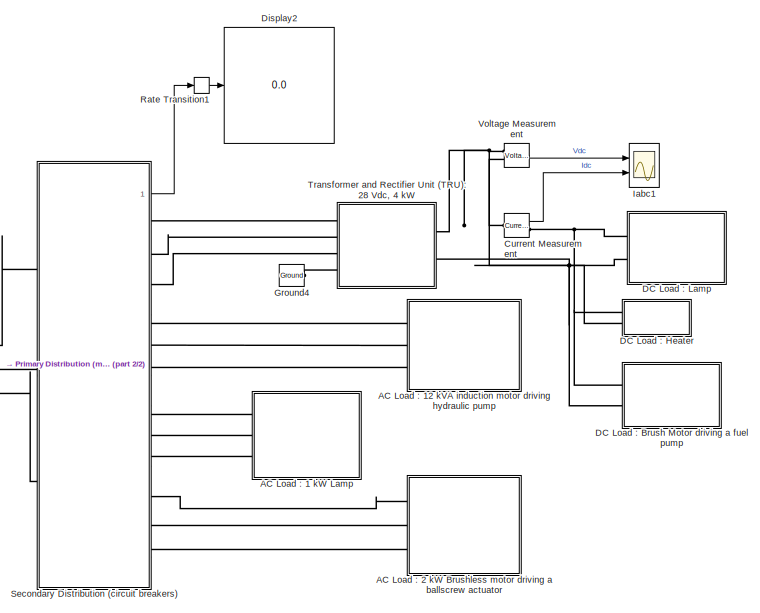
[diagram: root canvas - part 1/2, middle right region]
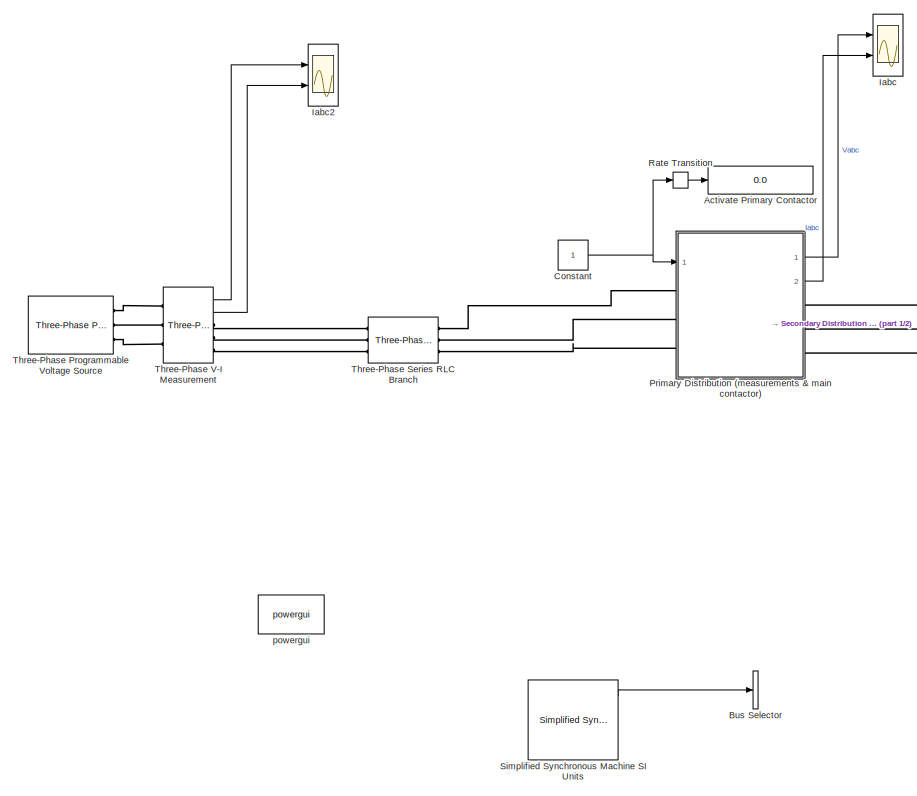
[diagram: root canvas - part 2/2, left side, full height]
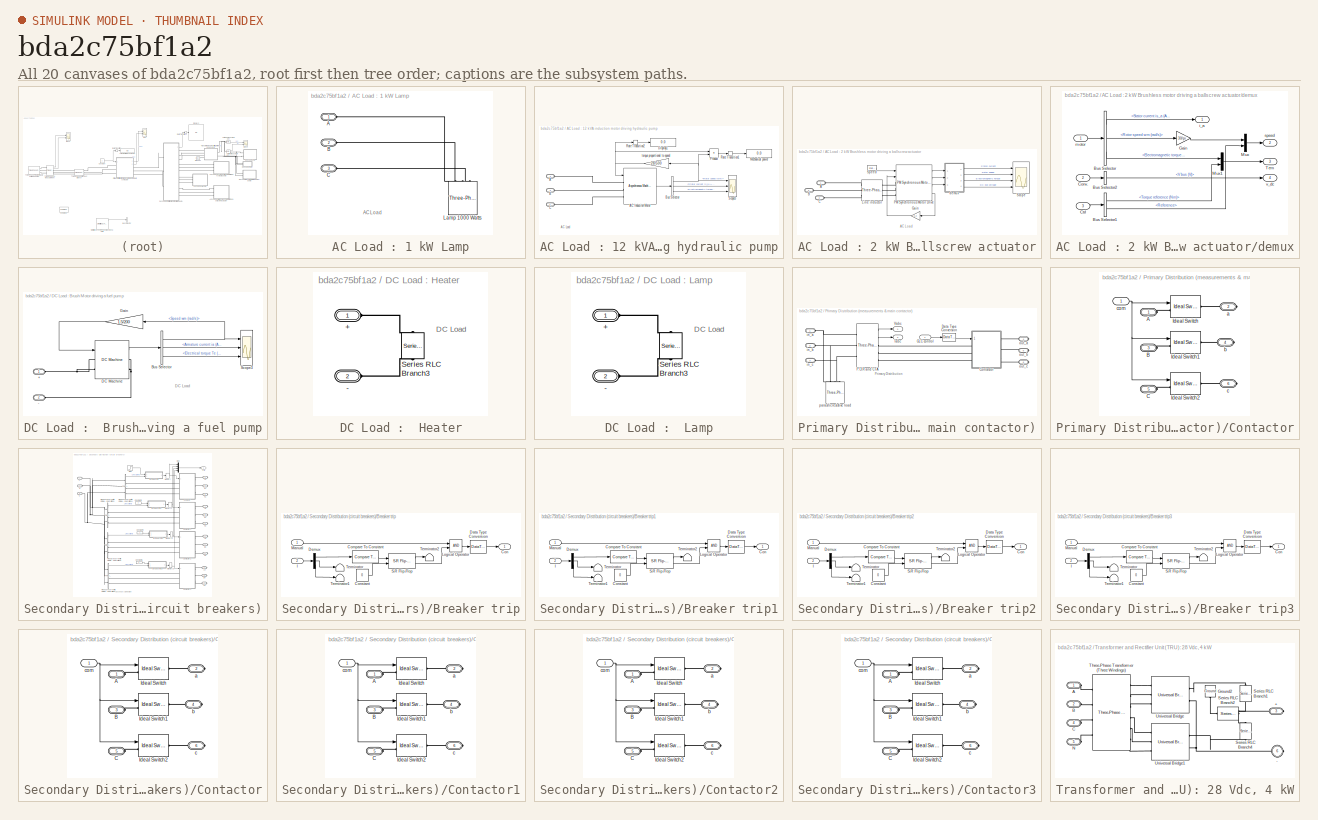
[diagram: thumbnail index - all 20 canvases of the model, root first then tree order]
MODEL slx_bda2c75bf1a2
KIND model
CONFIG AbsTol = auto
CONFIG FixedStep = auto
CONFIG MaxStep = auto
CONFIG MinStep = auto
CONFIG RelTol = 1e-3
CONFIG SampleTimeConstraint = Unconstrained
CONFIG Solver = VariableStepAuto
CONFIG SolverMode = Auto
CONFIG SolverName = VariableStepAuto
CONFIG StartTime = 0.0
CONFIG StopTime = 0.01
BLOCK [SubSystem] AC Load : 1 kW Lamp
  Ports = [0, 0, 0, 0, 0, 3]
  RequestExecContextInheritance = off
  Variant = off
BLOCK [PMIOPort] AC Load : 1 kW Lamp/A
  Port = 1
  Side = Left
BLOCK [PMIOPort] AC Load : 1 kW Lamp/B
  Port = 2
  Side = Left
BLOCK [PMIOPort] AC Load : 1 kW Lamp/C
  Port = 3
  Side = Left
BLOCK [Reference] AC Load : 1 kW Lamp/Lamp 1000 Watts  REF=powerlib/Elements/Three-Phase
Series RLC Load
  AttributesFormatString = \n
  Ports = [0, 0, 0, 0, 0, 3]
  SourceBlock = powerlib/Elements/Three-Phase\nSeries RLC Load
  SourceType = Three-Phase Series RLC Load
BLOCK [SubSystem] AC Load : 12 kVA induction motor driving hydraulic pump
  Ports = [0, 0, 0, 0, 0, 3]
  RequestExecContextInheritance = off
  Variant = off
BLOCK [PMIOPort] AC Load : 12 kVA induction motor driving hydraulic pump/A
  Port = 1
  Side = Left
BLOCK [Reference] AC Load : 12 kVA induction motor driving hydraulic pump/AC Induction Motor  REF=powerlib/Machines/Asynchronous Machine
SI Units
  Ports = [1, 1, 0, 0, 0, 3]
  SourceBlock = powerlib/Machines/Asynchronous Machine\nSI Units
  SourceType = Asynchronous Machine
BLOCK [PMIOPort] AC Load : 12 kVA induction motor driving hydraulic pump/B
  Port = 2
  Side = Left
BLOCK [BusSelector] AC Load : 12 kVA induction motor driving hydraulic pump/Bus Selector
  OutputSignals = Mechanical.Rotor speed (wm),Stator measurements.Stator current is_a (A),Mechanical.Electromagnetic torque Te (N*m)
  Ports = [1, 3]
BLOCK [PMIOPort] AC Load : 12 kVA induction motor driving hydraulic pump/C
  Port = 3
  Side = Left
BLOCK [Display] AC Load : 12 kVA induction motor driving hydraulic pump/Display1
  Decimation = 1
  Ports = [1]
  SampleTime = 1e-2
BLOCK [Display] AC Load : 12 kVA induction motor driving hydraulic pump/Mechanical power
  Decimation = 1
  Ports = [1]
  SampleTime = 1e-2
BLOCK [Product] AC Load : 12 kVA induction motor driving hydraulic pump/Product
  InputSameDT = off
  OutDataTypeStr = Inherit: Inherit via internal rule
  Ports = [2, 1]
  SaturateOnIntegerOverflow = off
BLOCK [RateTransition] AC Load : 12 kVA induction motor driving hydraulic pump/Rate Transition1
  OutPortSampleTime = Ts
  OutPortSampleTimeOpt = Inherit
BLOCK [RateTransition] AC Load : 12 kVA induction motor driving hydraulic pump/Rate Transition2
  OutPortSampleTime = Ts
  OutPortSampleTimeOpt = Inherit
BLOCK [Scope] AC Load : 12 kVA induction motor driving hydraulic pump/Scope3
  NumInputPorts = 3
  Ports = [3]
  ScopeSpecificationString = Simulink.scopes.TimeScopeBlockCfg('CurrentConfiguration', extmgr.ConfigurationSet(extmgr.Configuration('Core','General UI',true,'ShowLoadConfigSet',false,'ShowNewAction',false,'FigureColor',[0.156862745098039 0.156862745098039 0.156862745098039],'ShowSaveConfigSet',false,'ShowConfiguration',true,'ShowPlaybackToolbar',false),extmgr.Configuration('Core','Source UI',true,'ShowRecentSources',false,'Sh...<+3373ch>
BLOCK [Gain] AC Load : 12 kVA induction motor driving hydraulic pump/torque proportional to speed
  Gain = 28/500
  OutDataTypeStr = Inherit: Inherit via internal rule
  ParamDataTypeStr = Inherit: Inherit via internal rule
  SaturateOnIntegerOverflow = off
BLOCK [SubSystem] AC Load : 2 kW Brushless motor driving a ballscrew actuator
  Ports = [0, 0, 0, 0, 0, 3]
  RequestExecContextInheritance = off
  Variant = off
BLOCK [PMIOPort] AC Load : 2 kW Brushless motor driving a ballscrew actuator/A
  Port = 1
  Side = Left
BLOCK [PMIOPort] AC Load : 2 kW Brushless motor driving a ballscrew actuator/B
  Port = 2
  Side = Left
BLOCK [PMIOPort] AC Load : 2 kW Brushless motor driving a ballscrew actuator/C
  Port = 3
  Side = Left
BLOCK [Gain] AC Load : 2 kW Brushless motor driving a ballscrew actuator/Gain
  Gain = 0.2
  OutDataTypeStr = Inherit: Inherit via internal rule
  ParamDataTypeStr = Inherit: Inherit via internal rule
  SaturateOnIntegerOverflow = off
BLOCK [Reference] AC Load : 2 kW Brushless motor driving a ballscrew actuator/Line inductor  REF=powerlib/Elements/Three-Phase
Series RLC Branch
  AttributesFormatString = \n
  Ports = [0, 0, 0, 0, 0, 3, 3]
  SourceBlock = powerlib/Elements/Three-Phase\nSeries RLC Branch
  SourceType = Three-Phase Series RLC Branch
BLOCK [Reference] AC Load : 2 kW Brushless motor driving a ballscrew actuator/PM Synchronous Motor Drive  REF=electricdrivelib/AC drives/PM Synchronous Motor Drive
  Ports = [2, 4, 0, 0, 0, 3]
  SourceBlock = electricdrivelib/AC drives/PM Synchronous Motor Drive
  SourceType = PM Synchronous Motor Drive
  UserDataPersistent = on
BLOCK [Scope] AC Load : 2 kW Brushless motor driving a ballscrew actuator/Scope
  NumInputPorts = 4
  Ports = [4]
  ScopeSpecificationString = Simulink.scopes.TimeScopeBlockCfg('CurrentConfiguration', extmgr.ConfigurationSet(extmgr.Configuration('Core','General UI',true,'FigureColor',[0.156862745098039 0.156862745098039 0.156862745098039]),extmgr.Configuration('Core','Source UI',true),extmgr.Configuration('Sources','WiredSimulink',true,'DataLoggingSaveFormat','Array','DataLoggingDecimation','1'),extmgr.Configuration('Visuals','Time Domai...<+3716ch>
BLOCK [Reference] AC Load : 2 kW Brushless motor driving a ballscrew actuator/Speed  REF=powerlib_meascontrol/Pulse & Signal
Generators/Stair
Generator
  Ports = [0, 1]
  SourceBlock = powerlib_meascontrol/Pulse & Signal\nGenerators/Stair\nGenerator
  SourceType = Stair Generator
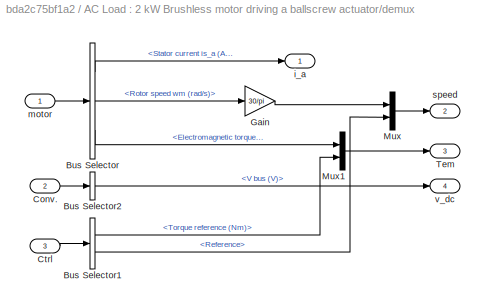
BLOCK [SubSystem] AC Load : 2 kW Brushless motor driving a ballscrew actuator/demux
  Ports = [3, 4]
  RequestExecContextInheritance = off
  Variant = off
BLOCK [BusSelector] AC Load : 2 kW Brushless motor driving a ballscrew actuator/demux/Bus Selector
  OutputSignals = Stator current is_a (A),Rotor speed wm (rad/s),Electromagnetic torque Te (N*m)
  Ports = [1, 3]
BLOCK [BusSelector] AC Load : 2 kW Brushless motor driving a ballscrew actuator/demux/Bus Selector1
  OutputSignals = Torque reference (Nm),Reference
  Ports = [1, 2]
BLOCK [BusSelector] AC Load : 2 kW Brushless motor driving a ballscrew actuator/demux/Bus Selector2
  OutputSignals = V bus (V)
  Ports = [1, 1]
BLOCK [Inport] AC Load : 2 kW Brushless motor driving a ballscrew actuator/demux/Conv.
  IconDisplay = Port number
  Port = 2
BLOCK [Inport] AC Load : 2 kW Brushless motor driving a ballscrew actuator/demux/Ctrl
  IconDisplay = Port number
  Port = 3
BLOCK [Gain] AC Load : 2 kW Brushless motor driving a ballscrew actuator/demux/Gain
  Gain = 30/pi
BLOCK [Mux] AC Load : 2 kW Brushless motor driving a ballscrew actuator/demux/Mux
  DisplayOption = bar
  Inputs = 2
  Ports = [2, 1]
BLOCK [Mux] AC Load : 2 kW Brushless motor driving a ballscrew actuator/demux/Mux1
  DisplayOption = bar
  Inputs = 2
  Ports = [2, 1]
BLOCK [Outport] AC Load : 2 kW Brushless motor driving a ballscrew actuator/demux/Tem
  IconDisplay = Port number
  Port = 3
BLOCK [Outport] AC Load : 2 kW Brushless motor driving a ballscrew actuator/demux/i_a
  IconDisplay = Port number
BLOCK [Inport] AC Load : 2 kW Brushless motor driving a ballscrew actuator/demux/motor
  IconDisplay = Port number
BLOCK [Outport] AC Load : 2 kW Brushless motor driving a ballscrew actuator/demux/speed
  IconDisplay = Port number
  Port = 2
BLOCK [Outport] AC Load : 2 kW Brushless motor driving a ballscrew actuator/demux/v_dc
  IconDisplay = Port number
  Port = 4
BLOCK [Display] Activate Primary Contactor
  Decimation = 1
  Ports = [1]
  SampleTime = 1e-2
BLOCK [BusSelector] Bus Selector
  OutputSignals = signal1,signal2
  Ports = [1, 2]
BLOCK [Constant] Constant
BLOCK [Reference] Current Measurement  REF=powerlib/Measurements/Current Measurement
  Ports = [0, 1, 0, 0, 0, 1, 1]
  SourceBlock = powerlib/Measurements/Current Measurement
  SourceType = Current Measurement
BLOCK [SubSystem] DC Load :  Brush Motor driving a fuel pump
  Ports = [0, 0, 0, 0, 0, 2]
  RequestExecContextInheritance = off
  Variant = off
BLOCK [PMIOPort] DC Load :  Brush Motor driving a fuel pump/+
  Port = 1
  Side = Left
BLOCK [PMIOPort] DC Load :  Brush Motor driving a fuel pump/-
  Port = 2
  Side = Left
BLOCK [BusSelector] DC Load :  Brush Motor driving a fuel pump/Bus Selector
  OutputSignals = Speed wm (rad/s),Armature current ia (A),Electrical torque Te (n m)
  Ports = [1, 3]
BLOCK [Reference] DC Load :  Brush Motor driving a fuel pump/DC Machine  REF=powerlib/Machines/DC Machine
  Ports = [1, 1, 0, 0, 0, 2, 2]
  SourceBlock = powerlib/Machines/DC Machine
  SourceType = DC machine
BLOCK [Gain] DC Load :  Brush Motor driving a fuel pump/Gain
  Gain = 1.5/200
  OutDataTypeStr = Inherit: Inherit via internal rule
  ParamDataTypeStr = Inherit: Inherit via internal rule
  SaturateOnIntegerOverflow = off
BLOCK [Scope] DC Load :  Brush Motor driving a fuel pump/Scope3
  NumInputPorts = 3
  Ports = [3]
  ScopeSpecificationString = Simulink.scopes.TimeScopeBlockCfg('CurrentConfiguration', extmgr.ConfigurationSet(extmgr.Configuration('Core','General UI',true,'ShowLoadConfigSet',false,'ShowNewAction',false,'FigureColor',[0.156862745098039 0.156862745098039 0.156862745098039],'ShowSaveConfigSet',false,'ShowConfiguration',true,'ShowPlaybackToolbar',false),extmgr.Configuration('Core','Source UI',true,'ShowRecentSources',false,'Sh...<+3373ch>
BLOCK [SubSystem] DC Load :  Heater
  Ports = [0, 0, 0, 0, 0, 2]
  RequestExecContextInheritance = off
  Variant = off
BLOCK [PMIOPort] DC Load :  Heater/+
  Port = 1
  Side = Left
BLOCK [PMIOPort] DC Load :  Heater/-
  Port = 2
  Side = Left
BLOCK [Reference] DC Load :  Heater/Series RLC Branch3  REF=powerlib/Elements/Series RLC Branch
  Ports = [0, 0, 0, 0, 0, 1, 1]
  SourceBlock = powerlib/Elements/Series RLC Branch
  SourceType = Series RLC Branch
BLOCK [SubSystem] DC Load :  Lamp
  Ports = [0, 0, 0, 0, 0, 2]
  RequestExecContextInheritance = off
  Variant = off
BLOCK [PMIOPort] DC Load :  Lamp/+
  Port = 1
  Side = Left
BLOCK [PMIOPort] DC Load :  Lamp/-
  Port = 2
  Side = Left
BLOCK [Reference] DC Load :  Lamp/Series RLC Branch3  REF=powerlib/Elements/Series RLC Branch
  Ports = [0, 0, 0, 0, 0, 1, 1]
  SourceBlock = powerlib/Elements/Series RLC Branch
  SourceType = Series RLC Branch
BLOCK [Display] Display2
  Decimation = 1
  Ports = [1]
  SampleTime = 1e-2
BLOCK [Reference] Ground4  REF=powerlib/Elements/Ground
  Ports = [0, 0, 0, 0, 0, 1]
  SourceBlock = powerlib/Elements/Ground
  SourceType = Ground
BLOCK [Scope] Iabc
  NumInputPorts = 2
  Ports = [2]
  ScopeSpecificationString = Simulink.scopes.TimeScopeBlockCfg('CurrentConfiguration', extmgr.ConfigurationSet(extmgr.Configuration('Core','General UI',true,'FigureColor',[0.156862745098039 0.156862745098039 0.156862745098039]),extmgr.Configuration('Core','Source UI',true),extmgr.Configuration('Sources','WiredSimulink',true,'DataLoggingSaveFormat','Array','DataLoggingDecimation','1','DataLoggingVariableName','ScopeData1'),ext...<+2982ch>
BLOCK [Scope] Iabc1
  NumInputPorts = 2
  Ports = [2]
  ScopeSpecificationString = C++SS(StrPVP('SaveName','ScopeData2'))
BLOCK [Scope] Iabc2
  NumInputPorts = 2
  Ports = [2]
  ScopeSpecificationString = Simulink.scopes.TimeScopeBlockCfg('CurrentConfiguration', extmgr.ConfigurationSet(extmgr.Configuration('Core','General UI',true,'FigureColor',[0.156862745098039 0.156862745098039 0.156862745098039]),extmgr.Configuration('Core','Source UI',true),extmgr.Configuration('Sources','WiredSimulink',true,'DataLoggingSaveFormat','Array','DataLoggingDecimation','1','DataLoggingVariableName','ScopeData3'),ext...<+3188ch>
BLOCK [SubSystem] Primary Distribution (measurements & main contactor)
  Ports = [1, 2, 0, 0, 0, 3, 3]
  RequestExecContextInheritance = off
  Variant = off
BLOCK [SubSystem] Primary Distribution (measurements & main contactor)/Contactor
  Ports = [1, 0, 0, 0, 0, 3, 3]
  RequestExecContextInheritance = off
  Variant = off
BLOCK [PMIOPort] Primary Distribution (measurements & main contactor)/Contactor/A
  Port = 1
  Side = Left
BLOCK [PMIOPort] Primary Distribution (measurements & main contactor)/Contactor/B
  Port = 3
  Side = Left
BLOCK [PMIOPort] Primary Distribution (measurements & main contactor)/Contactor/C
  Port = 5
  Side = Left
BLOCK [Reference] Primary Distribution (measurements & main contactor)/Contactor/Ideal Switch  REF=powerlib/Power
Electronics/Ideal Switch
  Ports = [1, 0, 0, 0, 0, 1, 1]
  SourceBlock = powerlib/Power\nElectronics/Ideal Switch
  SourceType = Ideal Switch
BLOCK [Reference] Primary Distribution (measurements & main contactor)/Contactor/Ideal Switch1  REF=powerlib/Power
Electronics/Ideal Switch
  Ports = [1, 0, 0, 0, 0, 1, 1]
  SourceBlock = powerlib/Power\nElectronics/Ideal Switch
  SourceType = Ideal Switch
BLOCK [Reference] Primary Distribution (measurements & main contactor)/Contactor/Ideal Switch2  REF=powerlib/Power
Electronics/Ideal Switch
  Ports = [1, 0, 0, 0, 0, 1, 1]
  SourceBlock = powerlib/Power\nElectronics/Ideal Switch
  SourceType = Ideal Switch
BLOCK [PMIOPort] Primary Distribution (measurements & main contactor)/Contactor/a
  Port = 2
  Side = Right
BLOCK [PMIOPort] Primary Distribution (measurements & main contactor)/Contactor/b
  Port = 4
  Side = Right
BLOCK [PMIOPort] Primary Distribution (measurements & main contactor)/Contactor/c
  Port = 6
  Side = Right
BLOCK [Inport] Primary Distribution (measurements & main contactor)/Contactor/com
  IconDisplay = Port number
BLOCK [DataTypeConversion] Primary Distribution (measurements & main contactor)/Data Type Conversion
  RndMeth = Floor
  SaturateOnIntegerOverflow = off
BLOCK [Inport] Primary Distribution (measurements & main contactor)/GLC control
  IconDisplay = Port number
BLOCK [Outport] Primary Distribution (measurements & main contactor)/Iabc
  IconDisplay = Port number
  Port = 2
BLOCK [Reference] Primary Distribution (measurements & main contactor)/P.O.R  and CTA  REF=powerlib/Measurements/Three-Phase
V-I Measurement
  Ports = [0, 2, 0, 0, 0, 3, 3]
  SourceBlock = powerlib/Measurements/Three-Phase\nV-I Measurement
  SourceType = Three-Phase VI Measurement
BLOCK [Outport] Primary Distribution (measurements & main contactor)/Vabc
  IconDisplay = Port number
BLOCK [PMIOPort] Primary Distribution (measurements & main contactor)/in_a
  Port = 1
  Side = Left
BLOCK [PMIOPort] Primary Distribution (measurements & main contactor)/in_b
  Port = 2
  Side = Left
BLOCK [PMIOPort] Primary Distribution (measurements & main contactor)/in_c
  Port = 3
  Side = Left
BLOCK [PMIOPort] Primary Distribution (measurements & main contactor)/out_a
  Port = 4
  Side = Right
BLOCK [PMIOPort] Primary Distribution (measurements & main contactor)/out_b
  Port = 5
  Side = Right
BLOCK [PMIOPort] Primary Distribution (measurements & main contactor)/out_c
  Port = 6
  Side = Right
BLOCK [Reference] Primary Distribution (measurements & main contactor)/parasitic resistive load  REF=powerlib/Elements/Three-Phase
Series RLC Load
  AttributesFormatString = \n
  Ports = [0, 0, 0, 0, 0, 3]
  SourceBlock = powerlib/Elements/Three-Phase\nSeries RLC Load
  SourceType = Three-Phase Series RLC Load
BLOCK [RateTransition] Rate Transition
  OutPortSampleTime = Ts
  OutPortSampleTimeOpt = Inherit
BLOCK [RateTransition] Rate Transition1
  OutPortSampleTime = Ts
  OutPortSampleTimeOpt = Inherit
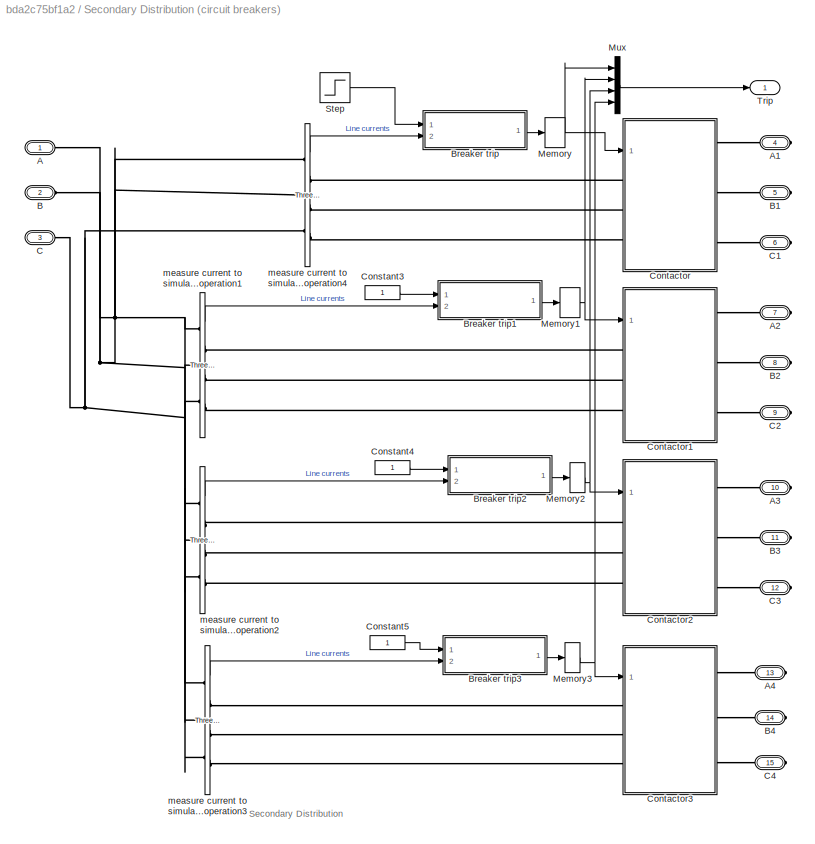
BLOCK [SubSystem] Secondary Distribution (circuit breakers)
  Ports = [0, 1, 0, 0, 0, 3, 12]
  RequestExecContextInheritance = off
  Variant = off
BLOCK [PMIOPort] Secondary Distribution (circuit breakers)/A
  Port = 1
  Side = Left
BLOCK [PMIOPort] Secondary Distribution (circuit breakers)/A1
  Port = 4
  Side = Right
BLOCK [PMIOPort] Secondary Distribution (circuit breakers)/A2
  Port = 7
  Side = Right
BLOCK [PMIOPort] Secondary Distribution (circuit breakers)/A3
  Port = 10
  Side = Right
BLOCK [PMIOPort] Secondary Distribution (circuit breakers)/A4
  Port = 13
  Side = Right
BLOCK [PMIOPort] Secondary Distribution (circuit breakers)/B
  Port = 2
  Side = Left
BLOCK [PMIOPort] Secondary Distribution (circuit breakers)/B1
  Port = 5
  Side = Right
BLOCK [PMIOPort] Secondary Distribution (circuit breakers)/B2
  Port = 8
  Side = Right
BLOCK [PMIOPort] Secondary Distribution (circuit breakers)/B3
  Port = 11
  Side = Right
BLOCK [PMIOPort] Secondary Distribution (circuit breakers)/B4
  Port = 14
  Side = Right
BLOCK [SubSystem] Secondary Distribution (circuit breakers)/Breaker trip
  Ports = [2, 1]
  RequestExecContextInheritance = off
  Variant = off
BLOCK [Reference] Secondary Distribution (circuit breakers)/Breaker trip/Compare To Constant  REF=simulink/Logic and Bit
Operations/Compare
To Constant
  Ports = [1, 1]
  SourceBlock = simulink/Logic and Bit\nOperations/Compare\nTo Constant
  SourceType = Compare To Constant
BLOCK [Outport] Secondary Distribution (circuit breakers)/Breaker trip/Con
  IconDisplay = Port number
BLOCK [Constant] Secondary Distribution (circuit breakers)/Breaker trip/Constant
  OutDataTypeStr = boolean
  Value = 0
BLOCK [DataTypeConversion] Secondary Distribution (circuit breakers)/Breaker trip/Data Type Conversion
  RndMeth = Floor
  SaturateOnIntegerOverflow = off
BLOCK [Demux] Secondary Distribution (circuit breakers)/Breaker trip/Demux
  DisplayOption = bar
  Outputs = 3
  Ports = [1, 3]
BLOCK [Inport] Secondary Distribution (circuit breakers)/Breaker trip/I
  IconDisplay = Port number
  Port = 2
BLOCK [Logic] Secondary Distribution (circuit breakers)/Breaker trip/Logical Operator
  AllPortsSameDT = off
  OutDataTypeStr = boolean
  Ports = [2, 1]
BLOCK [Inport] Secondary Distribution (circuit breakers)/Breaker trip/Manual
  IconDisplay = Port number
BLOCK [Reference] Secondary Distribution (circuit breakers)/Breaker trip/S-R Flip-Flop  REF=simulink_extras/Flip Flops/S-R
Flip-Flop
  Ports = [2, 2]
  SourceBlock = simulink_extras/Flip Flops/S-R\nFlip-Flop
  SourceType = SRFlipFlop
BLOCK [Terminator] Secondary Distribution (circuit breakers)/Breaker trip/Terminator
BLOCK [Terminator] Secondary Distribution (circuit breakers)/Breaker trip/Terminator1
BLOCK [Terminator] Secondary Distribution (circuit breakers)/Breaker trip/Terminator2
BLOCK [SubSystem] Secondary Distribution (circuit breakers)/Breaker trip1
  Ports = [2, 1]
  RequestExecContextInheritance = off
  Variant = off
BLOCK [Reference] Secondary Distribution (circuit breakers)/Breaker trip1/Compare To Constant  REF=simulink/Logic and Bit
Operations/Compare
To Constant
  Ports = [1, 1]
  SourceBlock = simulink/Logic and Bit\nOperations/Compare\nTo Constant
  SourceType = Compare To Constant
BLOCK [Outport] Secondary Distribution (circuit breakers)/Breaker trip1/Con
  IconDisplay = Port number
BLOCK [Constant] Secondary Distribution (circuit breakers)/Breaker trip1/Constant
  OutDataTypeStr = boolean
  Value = 0
BLOCK [DataTypeConversion] Secondary Distribution (circuit breakers)/Breaker trip1/Data Type Conversion
  RndMeth = Floor
  SaturateOnIntegerOverflow = off
BLOCK [Demux] Secondary Distribution (circuit breakers)/Breaker trip1/Demux
  DisplayOption = bar
  Outputs = 3
  Ports = [1, 3]
BLOCK [Inport] Secondary Distribution (circuit breakers)/Breaker trip1/I
  IconDisplay = Port number
  Port = 2
BLOCK [Logic] Secondary Distribution (circuit breakers)/Breaker trip1/Logical Operator
  AllPortsSameDT = off
  OutDataTypeStr = boolean
  Ports = [2, 1]
BLOCK [Inport] Secondary Distribution (circuit breakers)/Breaker trip1/Manual
  IconDisplay = Port number
BLOCK [Reference] Secondary Distribution (circuit breakers)/Breaker trip1/S-R Flip-Flop  REF=simulink_extras/Flip Flops/S-R
Flip-Flop
  Ports = [2, 2]
  SourceBlock = simulink_extras/Flip Flops/S-R\nFlip-Flop
  SourceType = SRFlipFlop
BLOCK [Terminator] Secondary Distribution (circuit breakers)/Breaker trip1/Terminator
BLOCK [Terminator] Secondary Distribution (circuit breakers)/Breaker trip1/Terminator1
BLOCK [Terminator] Secondary Distribution (circuit breakers)/Breaker trip1/Terminator2
BLOCK [SubSystem] Secondary Distribution (circuit breakers)/Breaker trip2
  Ports = [2, 1]
  RequestExecContextInheritance = off
  Variant = off
BLOCK [Reference] Secondary Distribution (circuit breakers)/Breaker trip2/Compare To Constant  REF=simulink/Logic and Bit
Operations/Compare
To Constant
  Ports = [1, 1]
  SourceBlock = simulink/Logic and Bit\nOperations/Compare\nTo Constant
  SourceType = Compare To Constant
BLOCK [Outport] Secondary Distribution (circuit breakers)/Breaker trip2/Con
  IconDisplay = Port number
BLOCK [Constant] Secondary Distribution (circuit breakers)/Breaker trip2/Constant
  OutDataTypeStr = boolean
  Value = 0
BLOCK [DataTypeConversion] Secondary Distribution (circuit breakers)/Breaker trip2/Data Type Conversion
  RndMeth = Floor
  SaturateOnIntegerOverflow = off
BLOCK [Demux] Secondary Distribution (circuit breakers)/Breaker trip2/Demux
  DisplayOption = bar
  Outputs = 3
  Ports = [1, 3]
BLOCK [Inport] Secondary Distribution (circuit breakers)/Breaker trip2/I
  IconDisplay = Port number
  Port = 2
BLOCK [Logic] Secondary Distribution (circuit breakers)/Breaker trip2/Logical Operator
  AllPortsSameDT = off
  OutDataTypeStr = boolean
  Ports = [2, 1]
BLOCK [Inport] Secondary Distribution (circuit breakers)/Breaker trip2/Manual
  IconDisplay = Port number
BLOCK [Reference] Secondary Distribution (circuit breakers)/Breaker trip2/S-R Flip-Flop  REF=simulink_extras/Flip Flops/S-R
Flip-Flop
  Ports = [2, 2]
  SourceBlock = simulink_extras/Flip Flops/S-R\nFlip-Flop
  SourceType = SRFlipFlop
BLOCK [Terminator] Secondary Distribution (circuit breakers)/Breaker trip2/Terminator
BLOCK [Terminator] Secondary Distribution (circuit breakers)/Breaker trip2/Terminator1
BLOCK [Terminator] Secondary Distribution (circuit breakers)/Breaker trip2/Terminator2
BLOCK [SubSystem] Secondary Distribution (circuit breakers)/Breaker trip3
  Ports = [2, 1]
  RequestExecContextInheritance = off
  Variant = off
BLOCK [Reference] Secondary Distribution (circuit breakers)/Breaker trip3/Compare To Constant  REF=simulink/Logic and Bit
Operations/Compare
To Constant
  Ports = [1, 1]
  SourceBlock = simulink/Logic and Bit\nOperations/Compare\nTo Constant
  SourceType = Compare To Constant
BLOCK [Outport] Secondary Distribution (circuit breakers)/Breaker trip3/Con
  IconDisplay = Port number
BLOCK [Constant] Secondary Distribution (circuit breakers)/Breaker trip3/Constant
  OutDataTypeStr = boolean
  Value = 0
BLOCK [DataTypeConversion] Secondary Distribution (circuit breakers)/Breaker trip3/Data Type Conversion
  RndMeth = Floor
  SaturateOnIntegerOverflow = off
BLOCK [Demux] Secondary Distribution (circuit breakers)/Breaker trip3/Demux
  DisplayOption = bar
  Outputs = 3
  Ports = [1, 3]
BLOCK [Inport] Secondary Distribution (circuit breakers)/Breaker trip3/I
  IconDisplay = Port number
  Port = 2
BLOCK [Logic] Secondary Distribution (circuit breakers)/Breaker trip3/Logical Operator
  AllPortsSameDT = off
  OutDataTypeStr = boolean
  Ports = [2, 1]
BLOCK [Inport] Secondary Distribution (circuit breakers)/Breaker trip3/Manual
  IconDisplay = Port number
BLOCK [Reference] Secondary Distribution (circuit breakers)/Breaker trip3/S-R Flip-Flop  REF=simulink_extras/Flip Flops/S-R
Flip-Flop
  Ports = [2, 2]
  SourceBlock = simulink_extras/Flip Flops/S-R\nFlip-Flop
  SourceType = SRFlipFlop
BLOCK [Terminator] Secondary Distribution (circuit breakers)/Breaker trip3/Terminator
BLOCK [Terminator] Secondary Distribution (circuit breakers)/Breaker trip3/Terminator1
BLOCK [Terminator] Secondary Distribution (circuit breakers)/Breaker trip3/Terminator2
BLOCK [PMIOPort] Secondary Distribution (circuit breakers)/C
  Port = 3
  Side = Left
BLOCK [PMIOPort] Secondary Distribution (circuit breakers)/C1
  Port = 6
  Side = Right
BLOCK [PMIOPort] Secondary Distribution (circuit breakers)/C2
  Port = 9
  Side = Right
BLOCK [PMIOPort] Secondary Distribution (circuit breakers)/C3
  Port = 12
  Side = Right
BLOCK [PMIOPort] Secondary Distribution (circuit breakers)/C4
  Port = 15
  Side = Right
BLOCK [Constant] Secondary Distribution (circuit breakers)/Constant3
  OutDataTypeStr = boolean
BLOCK [Constant] Secondary Distribution (circuit breakers)/Constant4
  OutDataTypeStr = boolean
BLOCK [Constant] Secondary Distribution (circuit breakers)/Constant5
  OutDataTypeStr = boolean
BLOCK [SubSystem] Secondary Distribution (circuit breakers)/Contactor
  Ports = [1, 0, 0, 0, 0, 3, 3]
  RequestExecContextInheritance = off
  Variant = off
BLOCK [PMIOPort] Secondary Distribution (circuit breakers)/Contactor/A
  Port = 1
  Side = Left
BLOCK [PMIOPort] Secondary Distribution (circuit breakers)/Contactor/B
  Port = 3
  Side = Left
BLOCK [PMIOPort] Secondary Distribution (circuit breakers)/Contactor/C
  Port = 5
  Side = Left
BLOCK [Reference] Secondary Distribution (circuit breakers)/Contactor/Ideal Switch  REF=powerlib/Power
Electronics/Ideal Switch
  Ports = [1, 0, 0, 0, 0, 1, 1]
  SourceBlock = powerlib/Power\nElectronics/Ideal Switch
  SourceType = Ideal Switch
BLOCK [Reference] Secondary Distribution (circuit breakers)/Contactor/Ideal Switch1  REF=powerlib/Power
Electronics/Ideal Switch
  Ports = [1, 0, 0, 0, 0, 1, 1]
  SourceBlock = powerlib/Power\nElectronics/Ideal Switch
  SourceType = Ideal Switch
BLOCK [Reference] Secondary Distribution (circuit breakers)/Contactor/Ideal Switch2  REF=powerlib/Power
Electronics/Ideal Switch
  Ports = [1, 0, 0, 0, 0, 1, 1]
  SourceBlock = powerlib/Power\nElectronics/Ideal Switch
  SourceType = Ideal Switch
BLOCK [PMIOPort] Secondary Distribution (circuit breakers)/Contactor/a
  Port = 2
  Side = Right
BLOCK [PMIOPort] Secondary Distribution (circuit breakers)/Contactor/b
  Port = 4
  Side = Right
BLOCK [PMIOPort] Secondary Distribution (circuit breakers)/Contactor/c
  Port = 6
  Side = Right
BLOCK [Inport] Secondary Distribution (circuit breakers)/Contactor/com
  IconDisplay = Port number
BLOCK [SubSystem] Secondary Distribution (circuit breakers)/Contactor1
  Ports = [1, 0, 0, 0, 0, 3, 3]
  RequestExecContextInheritance = off
  Variant = off
BLOCK [PMIOPort] Secondary Distribution (circuit breakers)/Contactor1/A
  Port = 1
  Side = Left
BLOCK [PMIOPort] Secondary Distribution (circuit breakers)/Contactor1/B
  Port = 3
  Side = Left
BLOCK [PMIOPort] Secondary Distribution (circuit breakers)/Contactor1/C
  Port = 5
  Side = Left
BLOCK [Reference] Secondary Distribution (circuit breakers)/Contactor1/Ideal Switch  REF=powerlib/Power
Electronics/Ideal Switch
  Ports = [1, 0, 0, 0, 0, 1, 1]
  SourceBlock = powerlib/Power\nElectronics/Ideal Switch
  SourceType = Ideal Switch
BLOCK [Reference] Secondary Distribution (circuit breakers)/Contactor1/Ideal Switch1  REF=powerlib/Power
Electronics/Ideal Switch
  Ports = [1, 0, 0, 0, 0, 1, 1]
  SourceBlock = powerlib/Power\nElectronics/Ideal Switch
  SourceType = Ideal Switch
BLOCK [Reference] Secondary Distribution (circuit breakers)/Contactor1/Ideal Switch2  REF=powerlib/Power
Electronics/Ideal Switch
  Ports = [1, 0, 0, 0, 0, 1, 1]
  SourceBlock = powerlib/Power\nElectronics/Ideal Switch
  SourceType = Ideal Switch
BLOCK [PMIOPort] Secondary Distribution (circuit breakers)/Contactor1/a
  Port = 2
  Side = Right
BLOCK [PMIOPort] Secondary Distribution (circuit breakers)/Contactor1/b
  Port = 4
  Side = Right
BLOCK [PMIOPort] Secondary Distribution (circuit breakers)/Contactor1/c
  Port = 6
  Side = Right
BLOCK [Inport] Secondary Distribution (circuit breakers)/Contactor1/com
  IconDisplay = Port number
BLOCK [SubSystem] Secondary Distribution (circuit breakers)/Contactor2
  Ports = [1, 0, 0, 0, 0, 3, 3]
  RequestExecContextInheritance = off
  Variant = off
BLOCK [PMIOPort] Secondary Distribution (circuit breakers)/Contactor2/A
  Port = 1
  Side = Left
BLOCK [PMIOPort] Secondary Distribution (circuit breakers)/Contactor2/B
  Port = 3
  Side = Left
BLOCK [PMIOPort] Secondary Distribution (circuit breakers)/Contactor2/C
  Port = 5
  Side = Left
BLOCK [Reference] Secondary Distribution (circuit breakers)/Contactor2/Ideal Switch  REF=powerlib/Power
Electronics/Ideal Switch
  Ports = [1, 0, 0, 0, 0, 1, 1]
  SourceBlock = powerlib/Power\nElectronics/Ideal Switch
  SourceType = Ideal Switch
BLOCK [Reference] Secondary Distribution (circuit breakers)/Contactor2/Ideal Switch1  REF=powerlib/Power
Electronics/Ideal Switch
  Ports = [1, 0, 0, 0, 0, 1, 1]
  SourceBlock = powerlib/Power\nElectronics/Ideal Switch
  SourceType = Ideal Switch
BLOCK [Reference] Secondary Distribution (circuit breakers)/Contactor2/Ideal Switch2  REF=powerlib/Power
Electronics/Ideal Switch
  Ports = [1, 0, 0, 0, 0, 1, 1]
  SourceBlock = powerlib/Power\nElectronics/Ideal Switch
  SourceType = Ideal Switch
BLOCK [PMIOPort] Secondary Distribution (circuit breakers)/Contactor2/a
  Port = 2
  Side = Right
BLOCK [PMIOPort] Secondary Distribution (circuit breakers)/Contactor2/b
  Port = 4
  Side = Right
BLOCK [PMIOPort] Secondary Distribution (circuit breakers)/Contactor2/c
  Port = 6
  Side = Right
BLOCK [Inport] Secondary Distribution (circuit breakers)/Contactor2/com
  IconDisplay = Port number
BLOCK [SubSystem] Secondary Distribution (circuit breakers)/Contactor3
  Ports = [1, 0, 0, 0, 0, 3, 3]
  RequestExecContextInheritance = off
  Variant = off
BLOCK [PMIOPort] Secondary Distribution (circuit breakers)/Contactor3/A
  Port = 1
  Side = Left
BLOCK [PMIOPort] Secondary Distribution (circuit breakers)/Contactor3/B
  Port = 3
  Side = Left
BLOCK [PMIOPort] Secondary Distribution (circuit breakers)/Contactor3/C
  Port = 5
  Side = Left
BLOCK [Reference] Secondary Distribution (circuit breakers)/Contactor3/Ideal Switch  REF=powerlib/Power
Electronics/Ideal Switch
  Ports = [1, 0, 0, 0, 0, 1, 1]
  SourceBlock = powerlib/Power\nElectronics/Ideal Switch
  SourceType = Ideal Switch
BLOCK [Reference] Secondary Distribution (circuit breakers)/Contactor3/Ideal Switch1  REF=powerlib/Power
Electronics/Ideal Switch
  Ports = [1, 0, 0, 0, 0, 1, 1]
  SourceBlock = powerlib/Power\nElectronics/Ideal Switch
  SourceType = Ideal Switch
BLOCK [Reference] Secondary Distribution (circuit breakers)/Contactor3/Ideal Switch2  REF=powerlib/Power
Electronics/Ideal Switch
  Ports = [1, 0, 0, 0, 0, 1, 1]
  SourceBlock = powerlib/Power\nElectronics/Ideal Switch
  SourceType = Ideal Switch
BLOCK [PMIOPort] Secondary Distribution (circuit breakers)/Contactor3/a
  Port = 2
  Side = Right
BLOCK [PMIOPort] Secondary Distribution (circuit breakers)/Contactor3/b
  Port = 4
  Side = Right
BLOCK [PMIOPort] Secondary Distribution (circuit breakers)/Contactor3/c
  Port = 6
  Side = Right
BLOCK [Inport] Secondary Distribution (circuit breakers)/Contactor3/com
  IconDisplay = Port number
BLOCK [Memory] Secondary Distribution (circuit breakers)/Memory
BLOCK [Memory] Secondary Distribution (circuit breakers)/Memory1
BLOCK [Memory] Secondary Distribution (circuit breakers)/Memory2
BLOCK [Memory] Secondary Distribution (circuit breakers)/Memory3
BLOCK [Mux] Secondary Distribution (circuit breakers)/Mux
  DisplayOption = bar
  Ports = [4, 1]
BLOCK [Step] Secondary Distribution (circuit breakers)/Step
  After = 0
  Before = 1
  SampleTime = 0
  Time = 3.5
BLOCK [Outport] Secondary Distribution (circuit breakers)/Trip
  IconDisplay = Port number
BLOCK [Reference] Secondary Distribution (circuit breakers)/measure current to simulate fuse operation1  REF=powerlib/Measurements/Three-Phase
V-I Measurement
  Ports = [0, 1, 0, 0, 0, 3, 3]
  SourceBlock = powerlib/Measurements/Three-Phase\nV-I Measurement
  SourceType = Three-Phase VI Measurement
BLOCK [Reference] Secondary Distribution (circuit breakers)/measure current to simulate fuse operation2  REF=powerlib/Measurements/Three-Phase
V-I Measurement
  Ports = [0, 1, 0, 0, 0, 3, 3]
  SourceBlock = powerlib/Measurements/Three-Phase\nV-I Measurement
  SourceType = Three-Phase VI Measurement
BLOCK [Reference] Secondary Distribution (circuit breakers)/measure current to simulate fuse operation3  REF=powerlib/Measurements/Three-Phase
V-I Measurement
  Ports = [0, 1, 0, 0, 0, 3, 3]
  SourceBlock = powerlib/Measurements/Three-Phase\nV-I Measurement
  SourceType = Three-Phase VI Measurement
BLOCK [Reference] Secondary Distribution (circuit breakers)/measure current to simulate fuse operation4  REF=powerlib/Measurements/Three-Phase
V-I Measurement
  Ports = [0, 1, 0, 0, 0, 3, 3]
  SourceBlock = powerlib/Measurements/Three-Phase\nV-I Measurement
  SourceType = Three-Phase VI Measurement
BLOCK [Reference] Simplified Synchronous Machine SI Units  REF=powerlib/Machines/Simplified Synchronous
Machine SI Units
  Ports = [2, 1, 0, 0, 0, 0, 3]
  SourceBlock = powerlib/Machines/Simplified Synchronous\nMachine SI Units
  SourceType = Simplified Synchronous Machine
BLOCK [Reference] Three-Phase Programmable Voltage Source  REF=powerlib/Electrical
Sources/Three-Phase
Programmable
Voltage Source
  Ports = [0, 0, 0, 0, 0, 1, 3]
  SourceBlock = powerlib/Electrical\nSources/Three-Phase\nProgrammable\nVoltage Source
  SourceType = Three-Phase Programmable Voltage Source
BLOCK [Reference] Three-Phase Series RLC Branch  REF=powerlib/Elements/Three-Phase
Series RLC Branch
  AttributesFormatString = \n
  Ports = [0, 0, 0, 0, 0, 3, 3]
  SourceBlock = powerlib/Elements/Three-Phase\nSeries RLC Branch
  SourceType = Three-Phase Series RLC Branch
BLOCK [Reference] Three-Phase V-I Measurement  REF=powerlib/Measurements/Three-Phase
V-I Measurement
  Ports = [0, 2, 0, 0, 0, 3, 3]
  SourceBlock = powerlib/Measurements/Three-Phase\nV-I Measurement
  SourceType = Three-Phase VI Measurement
BLOCK [SubSystem] Transformer and Rectifier Unit (TRU): 28 Vdc, 4 kW
  Ports = [0, 0, 0, 0, 0, 4, 2]
  RequestExecContextInheritance = off
  Variant = off
BLOCK [PMIOPort] Transformer and Rectifier Unit (TRU): 28 Vdc, 4 kW/+
  Port = 3
  Side = Right
BLOCK [PMIOPort] Transformer and Rectifier Unit (TRU): 28 Vdc, 4 kW/-
  Port = 6
  Side = Right
BLOCK [PMIOPort] Transformer and Rectifier Unit (TRU): 28 Vdc, 4 kW/A
  Port = 1
  Side = Left
BLOCK [PMIOPort] Transformer and Rectifier Unit (TRU): 28 Vdc, 4 kW/B
  Port = 2
  Side = Left
BLOCK [PMIOPort] Transformer and Rectifier Unit (TRU): 28 Vdc, 4 kW/C
  Port = 4
  Side = Left
BLOCK [Reference] Transformer and Rectifier Unit (TRU): 28 Vdc, 4 kW/Ground2  REF=powerlib/Elements/Ground
  Ports = [0, 0, 0, 0, 0, 1]
  SourceBlock = powerlib/Elements/Ground
  SourceType = Ground
BLOCK [PMIOPort] Transformer and Rectifier Unit (TRU): 28 Vdc, 4 kW/N
  Port = 5
  Side = Left
BLOCK [Reference] Transformer and Rectifier Unit (TRU): 28 Vdc, 4 kW/Series RLC Branch1  REF=powerlib/Elements/Series RLC Branch
  Ports = [0, 0, 0, 0, 0, 1, 1]
  SourceBlock = powerlib/Elements/Series RLC Branch
  SourceType = Series RLC Branch
BLOCK [Reference] Transformer and Rectifier Unit (TRU): 28 Vdc, 4 kW/Series RLC Branch2  REF=powerlib/Elements/Series RLC Branch
  Ports = [0, 0, 0, 0, 0, 1, 1]
  SourceBlock = powerlib/Elements/Series RLC Branch
  SourceType = Series RLC Branch
BLOCK [Reference] Transformer and Rectifier Unit (TRU): 28 Vdc, 4 kW/Series RLC Branch4  REF=powerlib/Elements/Series RLC Branch
  Ports = [0, 0, 0, 0, 0, 1, 1]
  SourceBlock = powerlib/Elements/Series RLC Branch
  SourceType = Series RLC Branch
BLOCK [Reference] Transformer and Rectifier Unit (TRU): 28 Vdc, 4 kW/Three-Phase Transformer (Three Windings)  REF=powerlib/Elements/Three-Phase
Transformer
(Three Windings)
  Ports = [0, 0, 0, 0, 0, 4, 6]
  SourceBlock = powerlib/Elements/Three-Phase\nTransformer\n(Three Windings)
  SourceType = Three-Phase Transformer (Three Windings)
BLOCK [Reference] Transformer and Rectifier Unit (TRU): 28 Vdc, 4 kW/Universal Bridge  REF=powerlib/Power
Electronics/Universal Bridge
  Ports = [0, 0, 0, 0, 0, 3, 2]
  SourceBlock = powerlib/Power\nElectronics/Universal Bridge
  SourceType = Universal Bridge
BLOCK [Reference] Transformer and Rectifier Unit (TRU): 28 Vdc, 4 kW/Universal Bridge1  REF=powerlib/Power
Electronics/Universal Bridge
  Ports = [0, 0, 0, 0, 0, 3, 2]
  SourceBlock = powerlib/Power\nElectronics/Universal Bridge
  SourceType = Universal Bridge
BLOCK [Reference] Voltage Measurement  REF=powerlib/Measurements/Voltage Measurement
  Ports = [0, 1, 0, 0, 0, 2]
  SourceBlock = powerlib/Measurements/Voltage Measurement
  SourceType = Voltage Measurement
BLOCK [Reference] powergui  REF=powerlib/powergui
  Ports = []
  Priority = 1
  SourceBlock = powerlib/powergui
  SourceType = PSB option menu block
  UserDataPersistent = on
ANNOTATION AC Load : 1 kW Lamp: AC Load
ANNOTATION AC Load : 12 kVA induction motor driving hydraulic pump: AC Load
ANNOTATION AC Load : 2 kW Brushless motor driving a ballscrew actuator: AC Load
ANNOTATION DC Load :  Brush Motor driving a fuel pump: DC Load
ANNOTATION DC Load :  Heater: DC Load
ANNOTATION DC Load :  Lamp: DC Load
ANNOTATION Primary Distribution (measurements & main contactor): Primary Distribution
ANNOTATION Secondary Distribution (circuit breakers): Secondary Distribution
LINE AC Load : 12 kVA induction motor driving hydraulic pump/AC Induction Motor:1 -> AC Load : 12 kVA induction motor driving hydraulic pump/Bus Selector:1
NET AC Load : 12 kVA induction motor driving hydraulic pump/Bus Selector:1 -> AC Load : 12 kVA induction motor driving hydraulic pump/Product:2, AC Load : 12 kVA induction motor driving hydraulic pump/Scope3:1, AC Load : 12 kVA induction motor driving hydraulic pump/torque proportional to speed:1
LINE AC Load : 12 kVA induction motor driving hydraulic pump/Bus Selector:2 -> AC Load : 12 kVA induction motor driving hydraulic pump/Scope3:2
LINE AC Load : 12 kVA induction motor driving hydraulic pump/Bus Selector:3 -> AC Load : 12 kVA induction motor driving hydraulic pump/Scope3:3
LINE AC Load : 12 kVA induction motor driving hydraulic pump/Product:1 -> AC Load : 12 kVA induction motor driving hydraulic pump/Rate Transition1:1
LINE AC Load : 12 kVA induction motor driving hydraulic pump/Rate Transition1:1 -> AC Load : 12 kVA induction motor driving hydraulic pump/Mechanical power:1
LINE AC Load : 12 kVA induction motor driving hydraulic pump/Rate Transition2:1 -> AC Load : 12 kVA induction motor driving hydraulic pump/Display1:1
NET AC Load : 12 kVA induction motor driving hydraulic pump/torque proportional to speed:1 -> AC Load : 12 kVA induction motor driving hydraulic pump/AC Induction Motor:1, AC Load : 12 kVA induction motor driving hydraulic pump/Product:1, AC Load : 12 kVA induction motor driving hydraulic pump/Rate Transition2:1
LINE AC Load : 2 kW Brushless motor driving a ballscrew actuator/Gain:1 -> AC Load : 2 kW Brushless motor driving a ballscrew actuator/PM Synchronous Motor Drive:2
LINE AC Load : 2 kW Brushless motor driving a ballscrew actuator/PM Synchronous Motor Drive:1 -> AC Load : 2 kW Brushless motor driving a ballscrew actuator/demux:1
LINE AC Load : 2 kW Brushless motor driving a ballscrew actuator/PM Synchronous Motor Drive:2 -> AC Load : 2 kW Brushless motor driving a ballscrew actuator/demux:2
LINE AC Load : 2 kW Brushless motor driving a ballscrew actuator/PM Synchronous Motor Drive:3 -> AC Load : 2 kW Brushless motor driving a ballscrew actuator/demux:3
LINE AC Load : 2 kW Brushless motor driving a ballscrew actuator/PM Synchronous Motor Drive:4 -> AC Load : 2 kW Brushless motor driving a ballscrew actuator/Gain:1
LINE AC Load : 2 kW Brushless motor driving a ballscrew actuator/Speed:1 -> AC Load : 2 kW Brushless motor driving a ballscrew actuator/PM Synchronous Motor Drive:1
LINE AC Load : 2 kW Brushless motor driving a ballscrew actuator/demux/Bus Selector1:1 -> AC Load : 2 kW Brushless motor driving a ballscrew actuator/demux/Mux1:2
LINE AC Load : 2 kW Brushless motor driving a ballscrew actuator/demux/Bus Selector1:2 -> AC Load : 2 kW Brushless motor driving a ballscrew actuator/demux/Mux:2
LINE AC Load : 2 kW Brushless motor driving a ballscrew actuator/demux/Bus Selector2:1 -> AC Load : 2 kW Brushless motor driving a ballscrew actuator/demux/v_dc:1
LINE AC Load : 2 kW Brushless motor driving a ballscrew actuator/demux/Bus Selector:1 -> AC Load : 2 kW Brushless motor driving a ballscrew actuator/demux/i_a:1
LINE AC Load : 2 kW Brushless motor driving a ballscrew actuator/demux/Bus Selector:2 -> AC Load : 2 kW Brushless motor driving a ballscrew actuator/demux/Gain:1
LINE AC Load : 2 kW Brushless motor driving a ballscrew actuator/demux/Bus Selector:3 -> AC Load : 2 kW Brushless motor driving a ballscrew actuator/demux/Mux1:1
LINE AC Load : 2 kW Brushless motor driving a ballscrew actuator/demux/Conv.:1 -> AC Load : 2 kW Brushless motor driving a ballscrew actuator/demux/Bus Selector2:1
LINE AC Load : 2 kW Brushless motor driving a ballscrew actuator/demux/Ctrl:1 -> AC Load : 2 kW Brushless motor driving a ballscrew actuator/demux/Bus Selector1:1
LINE AC Load : 2 kW Brushless motor driving a ballscrew actuator/demux/Gain:1 -> AC Load : 2 kW Brushless motor driving a ballscrew actuator/demux/Mux:1
LINE AC Load : 2 kW Brushless motor driving a ballscrew actuator/demux/Mux1:1 -> AC Load : 2 kW Brushless motor driving a ballscrew actuator/demux/Tem:1
LINE AC Load : 2 kW Brushless motor driving a ballscrew actuator/demux/Mux:1 -> AC Load : 2 kW Brushless motor driving a ballscrew actuator/demux/speed:1
LINE AC Load : 2 kW Brushless motor driving a ballscrew actuator/demux/motor:1 -> AC Load : 2 kW Brushless motor driving a ballscrew actuator/demux/Bus Selector:1
LINE AC Load : 2 kW Brushless motor driving a ballscrew actuator/demux:1 -> AC Load : 2 kW Brushless motor driving a ballscrew actuator/Scope:1
LINE AC Load : 2 kW Brushless motor driving a ballscrew actuator/demux:2 -> AC Load : 2 kW Brushless motor driving a ballscrew actuator/Scope:2
LINE AC Load : 2 kW Brushless motor driving a ballscrew actuator/demux:3 -> AC Load : 2 kW Brushless motor driving a ballscrew actuator/Scope:3
LINE AC Load : 2 kW Brushless motor driving a ballscrew actuator/demux:4 -> AC Load : 2 kW Brushless motor driving a ballscrew actuator/Scope:4
NET Constant:1 -> Primary Distribution (measurements & main contactor):1, Rate Transition:1
LINE Current Measurement:1 -> Iabc1:2
NET DC Load :  Brush Motor driving a fuel pump/Bus Selector:1 -> DC Load :  Brush Motor driving a fuel pump/Gain:1, DC Load :  Brush Motor driving a fuel pump/Scope3:1
LINE DC Load :  Brush Motor driving a fuel pump/Bus Selector:2 -> DC Load :  Brush Motor driving a fuel pump/Scope3:2
LINE DC Load :  Brush Motor driving a fuel pump/Bus Selector:3 -> DC Load :  Brush Motor driving a fuel pump/Scope3:3
LINE DC Load :  Brush Motor driving a fuel pump/DC Machine:1 -> DC Load :  Brush Motor driving a fuel pump/Bus Selector:1
LINE DC Load :  Brush Motor driving a fuel pump/Gain:1 -> DC Load :  Brush Motor driving a fuel pump/DC Machine:1
NET Primary Distribution (measurements & main contactor)/Contactor/com:1 -> Primary Distribution (measurements & main contactor)/Contactor/Ideal Switch1:1, Primary Distribution (measurements & main contactor)/Contactor/Ideal Switch2:1, Primary Distribution (measurements & main contactor)/Contactor/Ideal Switch:1
LINE Primary Distribution (measurements & main contactor)/Data Type Conversion:1 -> Primary Distribution (measurements & main contactor)/Contactor:1
LINE Primary Distribution (measurements & main contactor)/GLC control:1 -> Primary Distribution (measurements & main contactor)/Data Type Conversion:1
LINE Primary Distribution (measurements & main contactor)/P.O.R  and CTA:1 -> Primary Distribution (measurements & main contactor)/Vabc:1
LINE Primary Distribution (measurements & main contactor)/P.O.R  and CTA:2 -> Primary Distribution (measurements & main contactor)/Iabc:1
LINE Primary Distribution (measurements & main contactor):1 -> Iabc:1
LINE Primary Distribution (measurements & main contactor):2 -> Iabc:2
LINE Rate Transition1:1 -> Display2:1
LINE Rate Transition:1 -> Activate Primary Contactor:1
LINE Secondary Distribution (circuit breakers)/Breaker trip/Compare To Constant:1 -> Secondary Distribution (circuit breakers)/Breaker trip/S-R Flip-Flop:1
LINE Secondary Distribution (circuit breakers)/Breaker trip/Constant:1 -> Secondary Distribution (circuit breakers)/Breaker trip/S-R Flip-Flop:2
LINE Secondary Distribution (circuit breakers)/Breaker trip/Data Type Conversion:1 -> Secondary Distribution (circuit breakers)/Breaker trip/Con:1
LINE Secondary Distribution (circuit breakers)/Breaker trip/Demux:1 -> Secondary Distribution (circuit breakers)/Breaker trip/Compare To Constant:1
LINE Secondary Distribution (circuit breakers)/Breaker trip/Demux:2 -> Secondary Distribution (circuit breakers)/Breaker trip/Terminator:1
LINE Secondary Distribution (circuit breakers)/Breaker trip/Demux:3 -> Secondary Distribution (circuit breakers)/Breaker trip/Terminator1:1
LINE Secondary Distribution (circuit breakers)/Breaker trip/I:1 -> Secondary Distribution (circuit breakers)/Breaker trip/Demux:1
LINE Secondary Distribution (circuit breakers)/Breaker trip/Logical Operator:1 -> Secondary Distribution (circuit breakers)/Breaker trip/Data Type Conversion:1
LINE Secondary Distribution (circuit breakers)/Breaker trip/Manual:1 -> Secondary Distribution (circuit breakers)/Breaker trip/Logical Operator:1
LINE Secondary Distribution (circuit breakers)/Breaker trip/S-R Flip-Flop:1 -> Secondary Distribution (circuit breakers)/Breaker trip/Terminator2:1
LINE Secondary Distribution (circuit breakers)/Breaker trip/S-R Flip-Flop:2 -> Secondary Distribution (circuit breakers)/Breaker trip/Logical Operator:2
LINE Secondary Distribution (circuit breakers)/Breaker trip1/Compare To Constant:1 -> Secondary Distribution (circuit breakers)/Breaker trip1/S-R Flip-Flop:1
LINE Secondary Distribution (circuit breakers)/Breaker trip1/Constant:1 -> Secondary Distribution (circuit breakers)/Breaker trip1/S-R Flip-Flop:2
LINE Secondary Distribution (circuit breakers)/Breaker trip1/Data Type Conversion:1 -> Secondary Distribution (circuit breakers)/Breaker trip1/Con:1
LINE Secondary Distribution (circuit breakers)/Breaker trip1/Demux:1 -> Secondary Distribution (circuit breakers)/Breaker trip1/Compare To Constant:1
LINE Secondary Distribution (circuit breakers)/Breaker trip1/Demux:2 -> Secondary Distribution (circuit breakers)/Breaker trip1/Terminator:1
LINE Secondary Distribution (circuit breakers)/Breaker trip1/Demux:3 -> Secondary Distribution (circuit breakers)/Breaker trip1/Terminator1:1
LINE Secondary Distribution (circuit breakers)/Breaker trip1/I:1 -> Secondary Distribution (circuit breakers)/Breaker trip1/Demux:1
LINE Secondary Distribution (circuit breakers)/Breaker trip1/Logical Operator:1 -> Secondary Distribution (circuit breakers)/Breaker trip1/Data Type Conversion:1
LINE Secondary Distribution (circuit breakers)/Breaker trip1/Manual:1 -> Secondary Distribution (circuit breakers)/Breaker trip1/Logical Operator:1
LINE Secondary Distribution (circuit breakers)/Breaker trip1/S-R Flip-Flop:1 -> Secondary Distribution (circuit breakers)/Breaker trip1/Terminator2:1
LINE Secondary Distribution (circuit breakers)/Breaker trip1/S-R Flip-Flop:2 -> Secondary Distribution (circuit breakers)/Breaker trip1/Logical Operator:2
LINE Secondary Distribution (circuit breakers)/Breaker trip1:1 -> Secondary Distribution (circuit breakers)/Memory1:1
LINE Secondary Distribution (circuit breakers)/Breaker trip2/Compare To Constant:1 -> Secondary Distribution (circuit breakers)/Breaker trip2/S-R Flip-Flop:1
LINE Secondary Distribution (circuit breakers)/Breaker trip2/Constant:1 -> Secondary Distribution (circuit breakers)/Breaker trip2/S-R Flip-Flop:2
LINE Secondary Distribution (circuit breakers)/Breaker trip2/Data Type Conversion:1 -> Secondary Distribution (circuit breakers)/Breaker trip2/Con:1
LINE Secondary Distribution (circuit breakers)/Breaker trip2/Demux:1 -> Secondary Distribution (circuit breakers)/Breaker trip2/Compare To Constant:1
LINE Secondary Distribution (circuit breakers)/Breaker trip2/Demux:2 -> Secondary Distribution (circuit breakers)/Breaker trip2/Terminator:1
LINE Secondary Distribution (circuit breakers)/Breaker trip2/Demux:3 -> Secondary Distribution (circuit breakers)/Breaker trip2/Terminator1:1
LINE Secondary Distribution (circuit breakers)/Breaker trip2/I:1 -> Secondary Distribution (circuit breakers)/Breaker trip2/Demux:1
LINE Secondary Distribution (circuit breakers)/Breaker trip2/Logical Operator:1 -> Secondary Distribution (circuit breakers)/Breaker trip2/Data Type Conversion:1
LINE Secondary Distribution (circuit breakers)/Breaker trip2/Manual:1 -> Secondary Distribution (circuit breakers)/Breaker trip2/Logical Operator:1
LINE Secondary Distribution (circuit breakers)/Breaker trip2/S-R Flip-Flop:1 -> Secondary Distribution (circuit breakers)/Breaker trip2/Terminator2:1
LINE Secondary Distribution (circuit breakers)/Breaker trip2/S-R Flip-Flop:2 -> Secondary Distribution (circuit breakers)/Breaker trip2/Logical Operator:2
LINE Secondary Distribution (circuit breakers)/Breaker trip2:1 -> Secondary Distribution (circuit breakers)/Memory2:1
LINE Secondary Distribution (circuit breakers)/Breaker trip3/Compare To Constant:1 -> Secondary Distribution (circuit breakers)/Breaker trip3/S-R Flip-Flop:1
LINE Secondary Distribution (circuit breakers)/Breaker trip3/Constant:1 -> Secondary Distribution (circuit breakers)/Breaker trip3/S-R Flip-Flop:2
LINE Secondary Distribution (circuit breakers)/Breaker trip3/Data Type Conversion:1 -> Secondary Distribution (circuit breakers)/Breaker trip3/Con:1
LINE Secondary Distribution (circuit breakers)/Breaker trip3/Demux:1 -> Secondary Distribution (circuit breakers)/Breaker trip3/Compare To Constant:1
LINE Secondary Distribution (circuit breakers)/Breaker trip3/Demux:2 -> Secondary Distribution (circuit breakers)/Breaker trip3/Terminator:1
LINE Secondary Distribution (circuit breakers)/Breaker trip3/Demux:3 -> Secondary Distribution (circuit breakers)/Breaker trip3/Terminator1:1
LINE Secondary Distribution (circuit breakers)/Breaker trip3/I:1 -> Secondary Distribution (circuit breakers)/Breaker trip3/Demux:1
LINE Secondary Distribution (circuit breakers)/Breaker trip3/Logical Operator:1 -> Secondary Distribution (circuit breakers)/Breaker trip3/Data Type Conversion:1
LINE Secondary Distribution (circuit breakers)/Breaker trip3/Manual:1 -> Secondary Distribution (circuit breakers)/Breaker trip3/Logical Operator:1
LINE Secondary Distribution (circuit breakers)/Breaker trip3/S-R Flip-Flop:1 -> Secondary Distribution (circuit breakers)/Breaker trip3/Terminator2:1
LINE Secondary Distribution (circuit breakers)/Breaker trip3/S-R Flip-Flop:2 -> Secondary Distribution (circuit breakers)/Breaker trip3/Logical Operator:2
LINE Secondary Distribution (circuit breakers)/Breaker trip3:1 -> Secondary Distribution (circuit breakers)/Memory3:1
LINE Secondary Distribution (circuit breakers)/Breaker trip:1 -> Secondary Distribution (circuit breakers)/Memory:1
LINE Secondary Distribution (circuit breakers)/Constant3:1 -> Secondary Distribution (circuit breakers)/Breaker trip1:1
LINE Secondary Distribution (circuit breakers)/Constant4:1 -> Secondary Distribution (circuit breakers)/Breaker trip2:1
LINE Secondary Distribution (circuit breakers)/Constant5:1 -> Secondary Distribution (circuit breakers)/Breaker trip3:1
NET Secondary Distribution (circuit breakers)/Contactor/com:1 -> Secondary Distribution (circuit breakers)/Contactor/Ideal Switch1:1, Secondary Distribution (circuit breakers)/Contactor/Ideal Switch2:1, Secondary Distribution (circuit breakers)/Contactor/Ideal Switch:1
NET Secondary Distribution (circuit breakers)/Contactor1/com:1 -> Secondary Distribution (circuit breakers)/Contactor1/Ideal Switch1:1, Secondary Distribution (circuit breakers)/Contactor1/Ideal Switch2:1, Secondary Distribution (circuit breakers)/Contactor1/Ideal Switch:1
NET Secondary Distribution (circuit breakers)/Contactor2/com:1 -> Secondary Distribution (circuit breakers)/Contactor2/Ideal Switch1:1, Secondary Distribution (circuit breakers)/Contactor2/Ideal Switch2:1, Secondary Distribution (circuit breakers)/Contactor2/Ideal Switch:1
NET Secondary Distribution (circuit breakers)/Contactor3/com:1 -> Secondary Distribution (circuit breakers)/Contactor3/Ideal Switch1:1, Secondary Distribution (circuit breakers)/Contactor3/Ideal Switch2:1, Secondary Distribution (circuit breakers)/Contactor3/Ideal Switch:1
NET Secondary Distribution (circuit breakers)/Memory1:1 -> Secondary Distribution (circuit breakers)/Contactor1:1, Secondary Distribution (circuit breakers)/Mux:2
NET Secondary Distribution (circuit breakers)/Memory2:1 -> Secondary Distribution (circuit breakers)/Contactor2:1, Secondary Distribution (circuit breakers)/Mux:3
NET Secondary Distribution (circuit breakers)/Memory3:1 -> Secondary Distribution (circuit breakers)/Contactor3:1, Secondary Distribution (circuit breakers)/Mux:4
NET Secondary Distribution (circuit breakers)/Memory:1 -> Secondary Distribution (circuit breakers)/Contactor:1, Secondary Distribution (circuit breakers)/Mux:1
LINE Secondary Distribution (circuit breakers)/Mux:1 -> Secondary Distribution (circuit breakers)/Trip:1
LINE Secondary Distribution (circuit breakers)/Step:1 -> Secondary Distribution (circuit breakers)/Breaker trip:1
LINE Secondary Distribution (circuit breakers)/measure current to simulate fuse operation1:1 -> Secondary Distribution (circuit breakers)/Breaker trip1:2
LINE Secondary Distribution (circuit breakers)/measure current to simulate fuse operation2:1 -> Secondary Distribution (circuit breakers)/Breaker trip2:2
LINE Secondary Distribution (circuit breakers)/measure current to simulate fuse operation3:1 -> Secondary Distribution (circuit breakers)/Breaker trip3:2
LINE Secondary Distribution (circuit breakers)/measure current to simulate fuse operation4:1 -> Secondary Distribution (circuit breakers)/Breaker trip:2
LINE Secondary Distribution (circuit breakers):1 -> Rate Transition1:1
LINE Simplified Synchronous Machine SI Units:1 -> Bus Selector:1
LINE Three-Phase V-I Measurement:1 -> Iabc2:1
LINE Three-Phase V-I Measurement:2 -> Iabc2:2
LINE Voltage Measurement:1 -> Iabc1:1
PLINE AC Load : 1 kW Lamp/A:RConn1 -- AC Load : 1 kW Lamp/Lamp 1000 Watts:LConn1
PLINE AC Load : 1 kW Lamp/B:RConn1 -- AC Load : 1 kW Lamp/Lamp 1000 Watts:LConn2
PLINE AC Load : 1 kW Lamp/C:RConn1 -- AC Load : 1 kW Lamp/Lamp 1000 Watts:LConn3
PLINE AC Load : 1 kW Lamp:LConn1 -- Secondary Distribution (circuit breakers):RConn7
PLINE AC Load : 1 kW Lamp:LConn2 -- Secondary Distribution (circuit breakers):RConn8
PLINE AC Load : 1 kW Lamp:LConn3 -- Secondary Distribution (circuit breakers):RConn9
PLINE AC Load : 12 kVA induction motor driving hydraulic pump/A:RConn1 -- AC Load : 12 kVA induction motor driving hydraulic pump/AC Induction Motor:LConn1
PLINE AC Load : 12 kVA induction motor driving hydraulic pump/AC Induction Motor:LConn2 -- AC Load : 12 kVA induction motor driving hydraulic pump/B:RConn1
PLINE AC Load : 12 kVA induction motor driving hydraulic pump/AC Induction Motor:LConn3 -- AC Load : 12 kVA induction motor driving hydraulic pump/C:RConn1
PLINE AC Load : 12 kVA induction motor driving hydraulic pump:LConn1 -- Secondary Distribution (circuit breakers):RConn4
PLINE AC Load : 12 kVA induction motor driving hydraulic pump:LConn2 -- Secondary Distribution (circuit breakers):RConn5
PLINE AC Load : 12 kVA induction motor driving hydraulic pump:LConn3 -- Secondary Distribution (circuit breakers):RConn6
PLINE AC Load : 2 kW Brushless motor driving a ballscrew actuator/A:RConn1 -- AC Load : 2 kW Brushless motor driving a ballscrew actuator/Line inductor:LConn1
PLINE AC Load : 2 kW Brushless motor driving a ballscrew actuator/B:RConn1 -- AC Load : 2 kW Brushless motor driving a ballscrew actuator/Line inductor:LConn2
PLINE AC Load : 2 kW Brushless motor driving a ballscrew actuator/C:RConn1 -- AC Load : 2 kW Brushless motor driving a ballscrew actuator/Line inductor:LConn3
PLINE AC Load : 2 kW Brushless motor driving a ballscrew actuator/Line inductor:RConn1 -- AC Load : 2 kW Brushless motor driving a ballscrew actuator/PM Synchronous Motor Drive:LConn1
PLINE AC Load : 2 kW Brushless motor driving a ballscrew actuator/Line inductor:RConn2 -- AC Load : 2 kW Brushless motor driving a ballscrew actuator/PM Synchronous Motor Drive:LConn2
PLINE AC Load : 2 kW Brushless motor driving a ballscrew actuator/Line inductor:RConn3 -- AC Load : 2 kW Brushless motor driving a ballscrew actuator/PM Synchronous Motor Drive:LConn3
PLINE AC Load : 2 kW Brushless motor driving a ballscrew actuator:LConn1 -- Secondary Distribution (circuit breakers):RConn10
PLINE AC Load : 2 kW Brushless motor driving a ballscrew actuator:LConn2 -- Secondary Distribution (circuit breakers):RConn11
PLINE AC Load : 2 kW Brushless motor driving a ballscrew actuator:LConn3 -- Secondary Distribution (circuit breakers):RConn12
PNET net1: Current Measurement:LConn1 -- Transformer and Rectifier Unit (TRU): 28 Vdc, 4 kW:RConn1 -- Voltage Measurement:LConn1
PNET net2: Current Measurement:RConn1 -- DC Load :  Brush Motor driving a fuel pump:LConn1 -- DC Load :  Heater:LConn1 -- DC Load :  Lamp:LConn1
PNET net3: DC Load :  Brush Motor driving a fuel pump/+:RConn1 -- DC Load :  Brush Motor driving a fuel pump/DC Machine:LConn1 -- DC Load :  Brush Motor driving a fuel pump/DC Machine:LConn2
PNET net4: DC Load :  Brush Motor driving a fuel pump/-:RConn1 -- DC Load :  Brush Motor driving a fuel pump/DC Machine:RConn1 -- DC Load :  Brush Motor driving a fuel pump/DC Machine:RConn2
PNET net5: DC Load :  Brush Motor driving a fuel pump:LConn2 -- DC Load :  Heater:LConn2 -- DC Load :  Lamp:LConn2 -- Transformer and Rectifier Unit (TRU): 28 Vdc, 4 kW:RConn2 -- Voltage Measurement:LConn2
PLINE DC Load :  Heater/+:RConn1 -- DC Load :  Heater/Series RLC Branch3:LConn1
PLINE DC Load :  Heater/-:RConn1 -- DC Load :  Heater/Series RLC Branch3:RConn1
PLINE DC Load :  Lamp/+:RConn1 -- DC Load :  Lamp/Series RLC Branch3:LConn1
PLINE DC Load :  Lamp/-:RConn1 -- DC Load :  Lamp/Series RLC Branch3:RConn1
PLINE Ground4:LConn1 -- Transformer and Rectifier Unit (TRU): 28 Vdc, 4 kW:LConn4
PLINE Primary Distribution (measurements & main contactor)/Contactor/A:RConn1 -- Primary Distribution (measurements & main contactor)/Contactor/Ideal Switch:LConn1
PLINE Primary Distribution (measurements & main contactor)/Contactor/B:RConn1 -- Primary Distribution (measurements & main contactor)/Contactor/Ideal Switch1:LConn1
PLINE Primary Distribution (measurements & main contactor)/Contactor/C:RConn1 -- Primary Distribution (measurements & main contactor)/Contactor/Ideal Switch2:LConn1
PLINE Primary Distribution (measurements & main contactor)/Contactor/Ideal Switch1:RConn1 -- Primary Distribution (measurements & main contactor)/Contactor/b:RConn1
PLINE Primary Distribution (measurements & main contactor)/Contactor/Ideal Switch2:RConn1 -- Primary Distribution (measurements & main contactor)/Contactor/c:RConn1
PLINE Primary Distribution (measurements & main contactor)/Contactor/Ideal Switch:RConn1 -- Primary Distribution (measurements & main contactor)/Contactor/a:RConn1
PLINE Primary Distribution (measurements & main contactor)/Contactor:LConn1 -- Primary Distribution (measurements & main contactor)/P.O.R  and CTA:RConn1
PLINE Primary Distribution (measurements & main contactor)/Contactor:LConn2 -- Primary Distribution (measurements & main contactor)/P.O.R  and CTA:RConn2
PLINE Primary Distribution (measurements & main contactor)/Contactor:LConn3 -- Primary Distribution (measurements & main contactor)/P.O.R  and CTA:RConn3
PLINE Primary Distribution (measurements & main contactor)/Contactor:RConn1 -- Primary Distribution (measurements & main contactor)/out_a:RConn1
PLINE Primary Distribution (measurements & main contactor)/Contactor:RConn2 -- Primary Distribution (measurements & main contactor)/out_b:RConn1
PLINE Primary Distribution (measurements & main contactor)/Contactor:RConn3 -- Primary Distribution (measurements & main contactor)/out_c:RConn1
PNET net6: Primary Distribution (measurements & main contactor)/P.O.R  and CTA:LConn1 -- Primary Distribution (measurements & main contactor)/in_a:RConn1 -- Primary Distribution (measurements & main contactor)/parasitic resistive load:LConn1
PNET net7: Primary Distribution (measurements & main contactor)/P.O.R  and CTA:LConn2 -- Primary Distribution (measurements & main contactor)/in_b:RConn1 -- Primary Distribution (measurements & main contactor)/parasitic resistive load:LConn2
PNET net8: Primary Distribution (measurements & main contactor)/P.O.R  and CTA:LConn3 -- Primary Distribution (measurements & main contactor)/in_c:RConn1 -- Primary Distribution (measurements & main contactor)/parasitic resistive load:LConn3
PLINE Primary Distribution (measurements & main contactor):LConn1 -- Three-Phase Series RLC Branch:RConn1
PLINE Primary Distribution (measurements & main contactor):LConn2 -- Three-Phase Series RLC Branch:RConn2
PLINE Primary Distribution (measurements & main contactor):LConn3 -- Three-Phase Series RLC Branch:RConn3
PLINE Primary Distribution (measurements & main contactor):RConn1 -- Secondary Distribution (circuit breakers):LConn1
PLINE Primary Distribution (measurements & main contactor):RConn2 -- Secondary Distribution (circuit breakers):LConn2
PLINE Primary Distribution (measurements & main contactor):RConn3 -- Secondary Distribution (circuit breakers):LConn3
PLINE Secondary Distribution (circuit breakers)/A1:RConn1 -- Secondary Distribution (circuit breakers)/Contactor:RConn1
PLINE Secondary Distribution (circuit breakers)/A2:RConn1 -- Secondary Distribution (circuit breakers)/Contactor1:RConn1
PLINE Secondary Distribution (circuit breakers)/A3:RConn1 -- Secondary Distribution (circuit breakers)/Contactor2:RConn1
PLINE Secondary Distribution (circuit breakers)/A4:RConn1 -- Secondary Distribution (circuit breakers)/Contactor3:RConn1
PNET net9: Secondary Distribution (circuit breakers)/A:RConn1 -- Secondary Distribution (circuit breakers)/measure current to simulate fuse operation1:LConn1 -- Secondary Distribution (circuit breakers)/measure current to simulate fuse operation2:LConn1 -- Secondary Distribution (circuit breakers)/measure current to simulate fuse operation3:LConn1 -- Secondary Distribution (circuit breakers)/measure current to simulate fuse operation4:LConn1
PLINE Secondary Distribution (circuit breakers)/B1:RConn1 -- Secondary Distribution (circuit breakers)/Contactor:RConn2
PLINE Secondary Distribution (circuit breakers)/B2:RConn1 -- Secondary Distribution (circuit breakers)/Contactor1:RConn2
PLINE Secondary Distribution (circuit breakers)/B3:RConn1 -- Secondary Distribution (circuit breakers)/Contactor2:RConn2
PLINE Secondary Distribution (circuit breakers)/B4:RConn1 -- Secondary Distribution (circuit breakers)/Contactor3:RConn2
PNET net10: Secondary Distribution (circuit breakers)/B:RConn1 -- Secondary Distribution (circuit breakers)/measure current to simulate fuse operation1:LConn2 -- Secondary Distribution (circuit breakers)/measure current to simulate fuse operation2:LConn2 -- Secondary Distribution (circuit breakers)/measure current to simulate fuse operation3:LConn2 -- Secondary Distribution (circuit breakers)/measure current to simulate fuse operation4:LConn2
PLINE Secondary Distribution (circuit breakers)/C1:RConn1 -- Secondary Distribution (circuit breakers)/Contactor:RConn3
PLINE Secondary Distribution (circuit breakers)/C2:RConn1 -- Secondary Distribution (circuit breakers)/Contactor1:RConn3
PLINE Secondary Distribution (circuit breakers)/C3:RConn1 -- Secondary Distribution (circuit breakers)/Contactor2:RConn3
PLINE Secondary Distribution (circuit breakers)/C4:RConn1 -- Secondary Distribution (circuit breakers)/Contactor3:RConn3
PNET net11: Secondary Distribution (circuit breakers)/C:RConn1 -- Secondary Distribution (circuit breakers)/measure current to simulate fuse operation1:LConn3 -- Secondary Distribution (circuit breakers)/measure current to simulate fuse operation2:LConn3 -- Secondary Distribution (circuit breakers)/measure current to simulate fuse operation3:LConn3 -- Secondary Distribution (circuit breakers)/measure current to simulate fuse operation4:LConn3
PLINE Secondary Distribution (circuit breakers)/Contactor/A:RConn1 -- Secondary Distribution (circuit breakers)/Contactor/Ideal Switch:LConn1
PLINE Secondary Distribution (circuit breakers)/Contactor/B:RConn1 -- Secondary Distribution (circuit breakers)/Contactor/Ideal Switch1:LConn1
PLINE Secondary Distribution (circuit breakers)/Contactor/C:RConn1 -- Secondary Distribution (circuit breakers)/Contactor/Ideal Switch2:LConn1
PLINE Secondary Distribution (circuit breakers)/Contactor/Ideal Switch1:RConn1 -- Secondary Distribution (circuit breakers)/Contactor/b:RConn1
PLINE Secondary Distribution (circuit breakers)/Contactor/Ideal Switch2:RConn1 -- Secondary Distribution (circuit breakers)/Contactor/c:RConn1
PLINE Secondary Distribution (circuit breakers)/Contactor/Ideal Switch:RConn1 -- Secondary Distribution (circuit breakers)/Contactor/a:RConn1
PLINE Secondary Distribution (circuit breakers)/Contactor1/A:RConn1 -- Secondary Distribution (circuit breakers)/Contactor1/Ideal Switch:LConn1
PLINE Secondary Distribution (circuit breakers)/Contactor1/B:RConn1 -- Secondary Distribution (circuit breakers)/Contactor1/Ideal Switch1:LConn1
PLINE Secondary Distribution (circuit breakers)/Contactor1/C:RConn1 -- Secondary Distribution (circuit breakers)/Contactor1/Ideal Switch2:LConn1
PLINE Secondary Distribution (circuit breakers)/Contactor1/Ideal Switch1:RConn1 -- Secondary Distribution (circuit breakers)/Contactor1/b:RConn1
PLINE Secondary Distribution (circuit breakers)/Contactor1/Ideal Switch2:RConn1 -- Secondary Distribution (circuit breakers)/Contactor1/c:RConn1
PLINE Secondary Distribution (circuit breakers)/Contactor1/Ideal Switch:RConn1 -- Secondary Distribution (circuit breakers)/Contactor1/a:RConn1
PLINE Secondary Distribution (circuit breakers)/Contactor1:LConn1 -- Secondary Distribution (circuit breakers)/measure current to simulate fuse operation1:RConn1
PLINE Secondary Distribution (circuit breakers)/Contactor1:LConn2 -- Secondary Distribution (circuit breakers)/measure current to simulate fuse operation1:RConn2
PLINE Secondary Distribution (circuit breakers)/Contactor1:LConn3 -- Secondary Distribution (circuit breakers)/measure current to simulate fuse operation1:RConn3
PLINE Secondary Distribution (circuit breakers)/Contactor2/A:RConn1 -- Secondary Distribution (circuit breakers)/Contactor2/Ideal Switch:LConn1
PLINE Secondary Distribution (circuit breakers)/Contactor2/B:RConn1 -- Secondary Distribution (circuit breakers)/Contactor2/Ideal Switch1:LConn1
PLINE Secondary Distribution (circuit breakers)/Contactor2/C:RConn1 -- Secondary Distribution (circuit breakers)/Contactor2/Ideal Switch2:LConn1
PLINE Secondary Distribution (circuit breakers)/Contactor2/Ideal Switch1:RConn1 -- Secondary Distribution (circuit breakers)/Contactor2/b:RConn1
PLINE Secondary Distribution (circuit breakers)/Contactor2/Ideal Switch2:RConn1 -- Secondary Distribution (circuit breakers)/Contactor2/c:RConn1
PLINE Secondary Distribution (circuit breakers)/Contactor2/Ideal Switch:RConn1 -- Secondary Distribution (circuit breakers)/Contactor2/a:RConn1
PLINE Secondary Distribution (circuit breakers)/Contactor2:LConn1 -- Secondary Distribution (circuit breakers)/measure current to simulate fuse operation2:RConn1
PLINE Secondary Distribution (circuit breakers)/Contactor2:LConn2 -- Secondary Distribution (circuit breakers)/measure current to simulate fuse operation2:RConn2
PLINE Secondary Distribution (circuit breakers)/Contactor2:LConn3 -- Secondary Distribution (circuit breakers)/measure current to simulate fuse operation2:RConn3
PLINE Secondary Distribution (circuit breakers)/Contactor3/A:RConn1 -- Secondary Distribution (circuit breakers)/Contactor3/Ideal Switch:LConn1
PLINE Secondary Distribution (circuit breakers)/Contactor3/B:RConn1 -- Secondary Distribution (circuit breakers)/Contactor3/Ideal Switch1:LConn1
PLINE Secondary Distribution (circuit breakers)/Contactor3/C:RConn1 -- Secondary Distribution (circuit breakers)/Contactor3/Ideal Switch2:LConn1
PLINE Secondary Distribution (circuit breakers)/Contactor3/Ideal Switch1:RConn1 -- Secondary Distribution (circuit breakers)/Contactor3/b:RConn1
PLINE Secondary Distribution (circuit breakers)/Contactor3/Ideal Switch2:RConn1 -- Secondary Distribution (circuit breakers)/Contactor3/c:RConn1
PLINE Secondary Distribution (circuit breakers)/Contactor3/Ideal Switch:RConn1 -- Secondary Distribution (circuit breakers)/Contactor3/a:RConn1
PLINE Secondary Distribution (circuit breakers)/Contactor3:LConn1 -- Secondary Distribution (circuit breakers)/measure current to simulate fuse operation3:RConn1
PLINE Secondary Distribution (circuit breakers)/Contactor3:LConn2 -- Secondary Distribution (circuit breakers)/measure current to simulate fuse operation3:RConn2
PLINE Secondary Distribution (circuit breakers)/Contactor3:LConn3 -- Secondary Distribution (circuit breakers)/measure current to simulate fuse operation3:RConn3
PLINE Secondary Distribution (circuit breakers)/Contactor:LConn1 -- Secondary Distribution (circuit breakers)/measure current to simulate fuse operation4:RConn1
PLINE Secondary Distribution (circuit breakers)/Contactor:LConn2 -- Secondary Distribution (circuit breakers)/measure current to simulate fuse operation4:RConn2
PLINE Secondary Distribution (circuit breakers)/Contactor:LConn3 -- Secondary Distribution (circuit breakers)/measure current to simulate fuse operation4:RConn3
PLINE Secondary Distribution (circuit breakers):RConn1 -- Transformer and Rectifier Unit (TRU): 28 Vdc, 4 kW:LConn1
PLINE Secondary Distribution (circuit breakers):RConn2 -- Transformer and Rectifier Unit (TRU): 28 Vdc, 4 kW:LConn2
PLINE Secondary Distribution (circuit breakers):RConn3 -- Transformer and Rectifier Unit (TRU): 28 Vdc, 4 kW:LConn3
PLINE Three-Phase Programmable Voltage Source:RConn1 -- Three-Phase V-I Measurement:LConn1
PLINE Three-Phase Programmable Voltage Source:RConn2 -- Three-Phase V-I Measurement:LConn2
PLINE Three-Phase Programmable Voltage Source:RConn3 -- Three-Phase V-I Measurement:LConn3
PLINE Three-Phase Series RLC Branch:LConn1 -- Three-Phase V-I Measurement:RConn1
PLINE Three-Phase Series RLC Branch:LConn2 -- Three-Phase V-I Measurement:RConn2
PLINE Three-Phase Series RLC Branch:LConn3 -- Three-Phase V-I Measurement:RConn3
PNET net12: Transformer and Rectifier Unit (TRU): 28 Vdc, 4 kW/+:RConn1 -- Transformer and Rectifier Unit (TRU): 28 Vdc, 4 kW/Series RLC Branch1:RConn1 -- Transformer and Rectifier Unit (TRU): 28 Vdc, 4 kW/Series RLC Branch2:LConn1 -- Transformer and Rectifier Unit (TRU): 28 Vdc, 4 kW/Series RLC Branch4:LConn1
PNET net13: Transformer and Rectifier Unit (TRU): 28 Vdc, 4 kW/-:RConn1 -- Transformer and Rectifier Unit (TRU): 28 Vdc, 4 kW/Universal Bridge1:RConn2 -- Transformer and Rectifier Unit (TRU): 28 Vdc, 4 kW/Universal Bridge:RConn2
PLINE Transformer and Rectifier Unit (TRU): 28 Vdc, 4 kW/A:RConn1 -- Transformer and Rectifier Unit (TRU): 28 Vdc, 4 kW/Three-Phase Transformer (Three Windings):LConn1
PLINE Transformer and Rectifier Unit (TRU): 28 Vdc, 4 kW/B:RConn1 -- Transformer and Rectifier Unit (TRU): 28 Vdc, 4 kW/Three-Phase Transformer (Three Windings):LConn2
PLINE Transformer and Rectifier Unit (TRU): 28 Vdc, 4 kW/C:RConn1 -- Transformer and Rectifier Unit (TRU): 28 Vdc, 4 kW/Three-Phase Transformer (Three Windings):LConn3
PLINE Transformer and Rectifier Unit (TRU): 28 Vdc, 4 kW/Ground2:LConn1 -- Transformer and Rectifier Unit (TRU): 28 Vdc, 4 kW/Series RLC Branch2:RConn1
PLINE Transformer and Rectifier Unit (TRU): 28 Vdc, 4 kW/N:RConn1 -- Transformer and Rectifier Unit (TRU): 28 Vdc, 4 kW/Three-Phase Transformer (Three Windings):LConn4
PLINE Transformer and Rectifier Unit (TRU): 28 Vdc, 4 kW/Series RLC Branch1:LConn1 -- Transformer and Rectifier Unit (TRU): 28 Vdc, 4 kW/Universal Bridge:RConn1
PLINE Transformer and Rectifier Unit (TRU): 28 Vdc, 4 kW/Series RLC Branch4:RConn1 -- Transformer and Rectifier Unit (TRU): 28 Vdc, 4 kW/Universal Bridge1:RConn1
PLINE Transformer and Rectifier Unit (TRU): 28 Vdc, 4 kW/Three-Phase Transformer (Three Windings):RConn1 -- Transformer and Rectifier Unit (TRU): 28 Vdc, 4 kW/Universal Bridge:LConn1
PLINE Transformer and Rectifier Unit (TRU): 28 Vdc, 4 kW/Three-Phase Transformer (Three Windings):RConn2 -- Transformer and Rectifier Unit (TRU): 28 Vdc, 4 kW/Universal Bridge:LConn2
PLINE Transformer and Rectifier Unit (TRU): 28 Vdc, 4 kW/Three-Phase Transformer (Three Windings):RConn3 -- Transformer and Rectifier Unit (TRU): 28 Vdc, 4 kW/Universal Bridge:LConn3
PLINE Transformer and Rectifier Unit (TRU): 28 Vdc, 4 kW/Three-Phase Transformer (Three Windings):RConn4 -- Transformer and Rectifier Unit (TRU): 28 Vdc, 4 kW/Universal Bridge1:LConn1
PLINE Transformer and Rectifier Unit (TRU): 28 Vdc, 4 kW/Three-Phase Transformer (Three Windings):RConn5 -- Transformer and Rectifier Unit (TRU): 28 Vdc, 4 kW/Universal Bridge1:LConn2
PLINE Transformer and Rectifier Unit (TRU): 28 Vdc, 4 kW/Three-Phase Transformer (Three Windings):RConn6 -- Transformer and Rectifier Unit (TRU): 28 Vdc, 4 kW/Universal Bridge1:LConn3
note: NET lines group one-source signal fan-out (src -> all destinations, sorted); 1:1 wires keep LINE; PNET lines group multi-terminal physical nets as a canonical sorted terminal list (undirected conserving connections); 2-terminal nets keep the pairwise PLINE form
